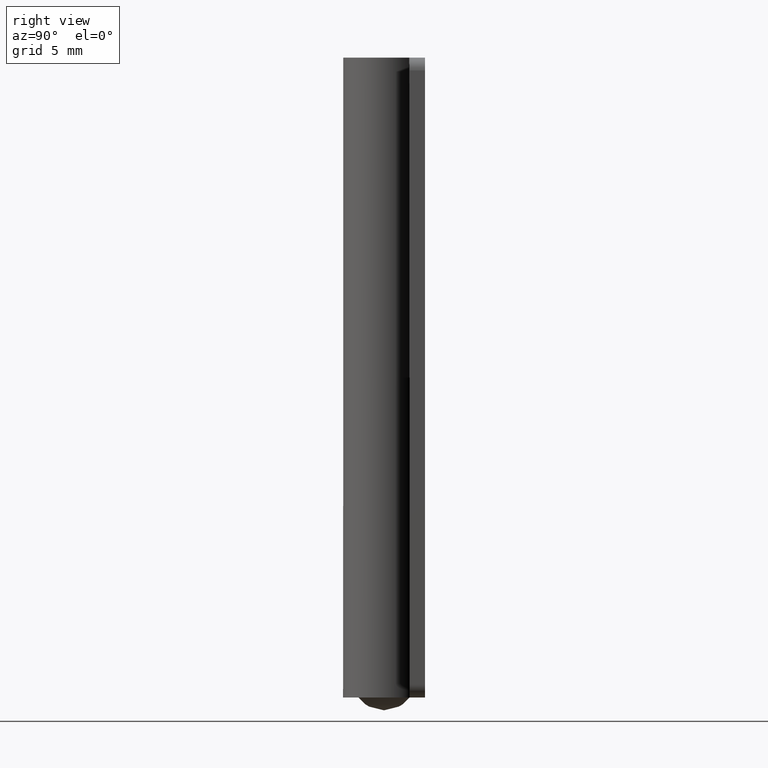
[diagram: clean part render]
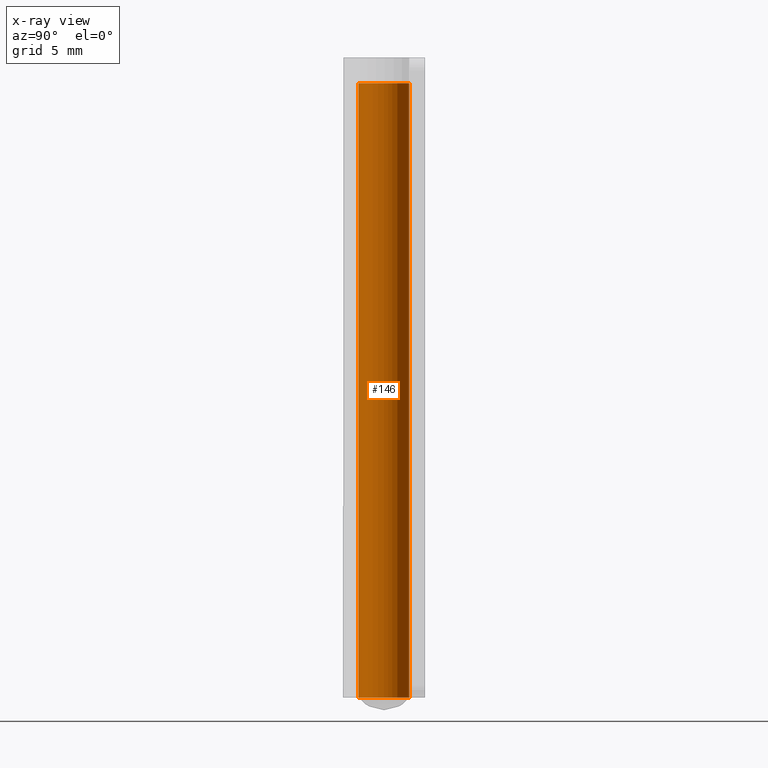
[diagram: x-ray — body ghosted, one internal face saturated and labeled with its STEP entity id]
A machine part, right view, then the same camera in x-ray: the body is ghosted and one INTERNAL B-rep face — a face not visible from any outside direction — is saturated and labeled: STEP entity #146.
In plain terms, the highlighted face is a freeform B-spline surface patch.
Its self-contained STEP definition (entity closure, byte-faithful):
#44=CARTESIAN_POINT('',(-0.236068470311388,1.986019061122315,49.199999976892201));
#45=CARTESIAN_POINT('',(-0.179229458033565,1.992775239320752,49.199999976892201));
#46=CARTESIAN_POINT('',(-0.122097079585823,1.996269605282045,49.199999976892201));
#47=CARTESIAN_POINT('',(1.874172525696221,2.118366684867868,49.199999976892201));
#48=CARTESIAN_POINT('',(1.996269605282045,0.122097079585823,49.199999976892201));
#49=CARTESIAN_POINT('',(2.118366684867868,-1.874172525696221,49.199999976892201));
#50=CARTESIAN_POINT('',(0.122097079585823,-1.996269605282045,49.199999976892201));
#51=CARTESIAN_POINT('',(-0.236068470311388,1.986019061122315,-1.229999999422305));
#52=CARTESIAN_POINT('',(-0.179229458033565,1.992775239320752,-1.229999999422305));
#53=CARTESIAN_POINT('',(-0.122097079585823,1.996269605282045,-1.229999999422304));
#54=CARTESIAN_POINT('',(1.874172525696221,2.118366684867868,-1.229999999422304));
#55=CARTESIAN_POINT('',(1.996269605282045,0.122097079585823,-1.229999999422304));
#56=CARTESIAN_POINT('',(2.118366684867868,-1.874172525696221,-1.229999999422304));
#57=CARTESIAN_POINT('',(0.122097079585823,-1.996269605282045,-1.229999999422304));
#65=(BOUNDED_SURFACE()B_SPLINE_SURFACE(2,1,((#44,#51),(#45,#52),(#46,#53),(#47,#54),(#48,#55),(#49,#56),(#50,#57)),.UNSPECIFIED.,.F.,.F.,.U.)B_SPLINE_SURFACE_WITH_KNOTS((3,2,2,3),(2,2),(0.0,0.132548340519678,3.446256853511616,6.759965366503554),(0.0,50.429999976314512),.UNSPECIFIED.)GEOMETRIC_REPRESENTATION_ITEM()RATIONAL_B_SPLINE_SURFACE(((0.977505800795127,0.977505800795127),(0.988284271247462,0.988284271247462),(1.0,1.0),(0.707106781186548,0.707106781186548),(1.0,1.0),(0.707106781186548,0.707106781186548),(1.0,1.0)))REPRESENTATION_ITEM('')SURFACE());
#66=CARTESIAN_POINT('',(-0.236068469828873,1.986019056922872,-1.930811E-015));
#67=VERTEX_POINT('',#66);
#68=CARTESIAN_POINT('',(2.0,0.0,0.0));
#69=VERTEX_POINT('',#68);
#70=CARTESIAN_POINT('',(-0.236068469828873,1.986019056922872,-1.930811E-015));
#71=CARTESIAN_POINT('',(-0.118448239320415,2.000000000000000,0.0));
#72=CARTESIAN_POINT('',(0.0,2.0,0.0));
#73=CARTESIAN_POINT('',(2.000000000000000,2.000000000000000,0.0));
#74=CARTESIAN_POINT('',(2.0,0.0,0.0));
#82=(BOUNDED_CURVE()B_SPLINE_CURVE(2,(#70,#71,#72,#73,#74),.UNSPECIFIED.,.F.,.U.)B_SPLINE_CURVE_WITH_KNOTS((3,2,3),(0.229562473512850,0.250000000000000,0.500000000000000),.UNSPECIFIED.)CURVE()GEOMETRIC_REPRESENTATION_ITEM()RATIONAL_B_SPLINE_CURVE((0.956026754182408,0.976055948330373,1.0,0.707106781186548,1.0))REPRESENTATION_ITEM(''));
#83=EDGE_CURVE('',#67,#69,#82,.T.);
#84=ORIENTED_EDGE('',*,*,#83,.F.);
#85=CARTESIAN_POINT('',(-0.236068470826744,1.986019065317851,47.999999977455801));
#86=VERTEX_POINT('',#85);
#87=CARTESIAN_POINT('',(-0.236068470826744,1.986019065317851,47.999999977455801));
#88=CARTESIAN_POINT('',(-0.236068469828873,1.986019056922872,-1.930811E-015));
#89=QUASI_UNIFORM_CURVE('',1,(#87,#88),.UNSPECIFIED.,.F.,.U.);
#90=EDGE_CURVE('',#86,#67,#89,.T.);
#91=ORIENTED_EDGE('',*,*,#90,.F.);
#92=CARTESIAN_POINT('',(2.000000016908155,0.0,47.999999977455801));
#93=VERTEX_POINT('',#92);
#94=CARTESIAN_POINT('',(-0.236068470826744,1.986019065317852,47.999999977455801));
#95=CARTESIAN_POINT('',(-0.118448240321785,2.000000016908155,47.999999977455801));
#96=CARTESIAN_POINT('',(0.0,2.000000016908155,47.999999977455801));
#97=CARTESIAN_POINT('',(2.000000016908155,2.000000016908155,47.999999977455786));
#98=CARTESIAN_POINT('',(2.000000016908155,0.0,47.999999977455801));
#106=(BOUNDED_CURVE()B_SPLINE_CURVE(2,(#94,#95,#96,#97,#98),.UNSPECIFIED.,.F.,.U.)B_SPLINE_CURVE_WITH_KNOTS((3,2,3),(0.229562473512850,0.250000000000000,0.500000000000000),.UNSPECIFIED.)CURVE()GEOMETRIC_REPRESENTATION_ITEM()RATIONAL_B_SPLINE_CURVE((0.956026754182408,0.976055948330373,1.0,0.707106781186548,1.0))REPRESENTATION_ITEM(''));
#107=EDGE_CURVE('',#86,#93,#106,.T.);
#108=ORIENTED_EDGE('',*,*,#107,.T.);
#109=CARTESIAN_POINT('',(0.122097079906760,-1.996269609497352,47.999999977455801));
#110=VERTEX_POINT('',#109);
#111=CARTESIAN_POINT('',(2.000000016908155,0.0,47.999999977455801));
#112=CARTESIAN_POINT('',(2.000000016908155,-1.881412149598245,47.999999977455793));
#113=CARTESIAN_POINT('',(0.122097079906760,-1.996269609497353,47.999999977455801));
#121=(BOUNDED_CURVE()B_SPLINE_CURVE(2,(#111,#112,#113),.UNSPECIFIED.,.F.,.U.)B_SPLINE_CURVE_WITH_KNOTS((3,3),(0.500000000000000,0.739332962231098),.UNSPECIFIED.)CURVE()GEOMETRIC_REPRESENTATION_ITEM()RATIONAL_B_SPLINE_CURVE((1.0,0.719603993295901,0.976072041649905))REPRESENTATION_ITEM(''));
#122=EDGE_CURVE('',#93,#110,#121,.T.);
#123=ORIENTED_EDGE('',*,*,#122,.T.);
#124=CARTESIAN_POINT('',(0.122097079390651,-1.996269601059043,-1.887379E-015));
#125=VERTEX_POINT('',#124);
#126=CARTESIAN_POINT('',(0.122097079906760,-1.996269609497352,47.999999977455801));
#127=CARTESIAN_POINT('',(0.122097079390651,-1.996269601059043,-1.887379E-015));
#128=QUASI_UNIFORM_CURVE('',1,(#126,#127),.UNSPECIFIED.,.F.,.U.);
#129=EDGE_CURVE('',#110,#125,#128,.T.);
#130=ORIENTED_EDGE('',*,*,#129,.T.);
#131=CARTESIAN_POINT('',(2.0,0.0,0.0));
#132=CARTESIAN_POINT('',(2.000000000000000,-1.881412133692641,0.0));
#133=CARTESIAN_POINT('',(0.122097079390651,-1.996269601059043,-1.887379E-015));
#141=(BOUNDED_CURVE()B_SPLINE_CURVE(2,(#131,#132,#133),.UNSPECIFIED.,.F.,.U.)B_SPLINE_CURVE_WITH_KNOTS((3,3),(0.500000000000000,0.739332962231098),.UNSPECIFIED.)CURVE()GEOMETRIC_REPRESENTATION_ITEM()RATIONAL_B_SPLINE_CURVE((1.0,0.719603993295901,0.976072041649905))REPRESENTATION_ITEM(''));
#142=EDGE_CURVE('',#69,#125,#141,.T.);
#143=ORIENTED_EDGE('',*,*,#142,.F.);
#144=EDGE_LOOP('',(#84,#91,#108,#123,#130,#143));
#145=FACE_OUTER_BOUND('',#144,.T.);
#146=ADVANCED_FACE('',(#145),#65,.T.);